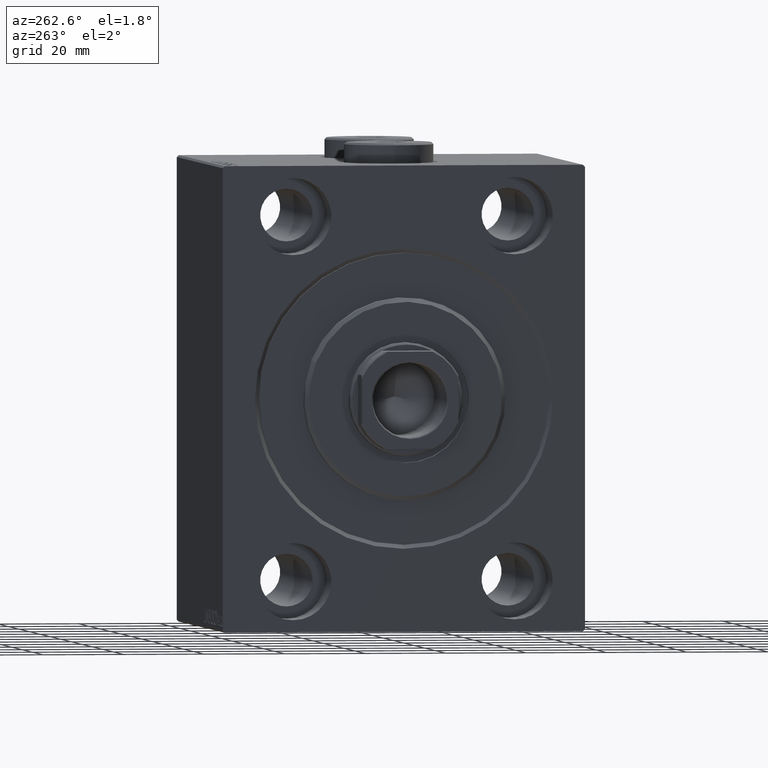
[diagram: clean part render]
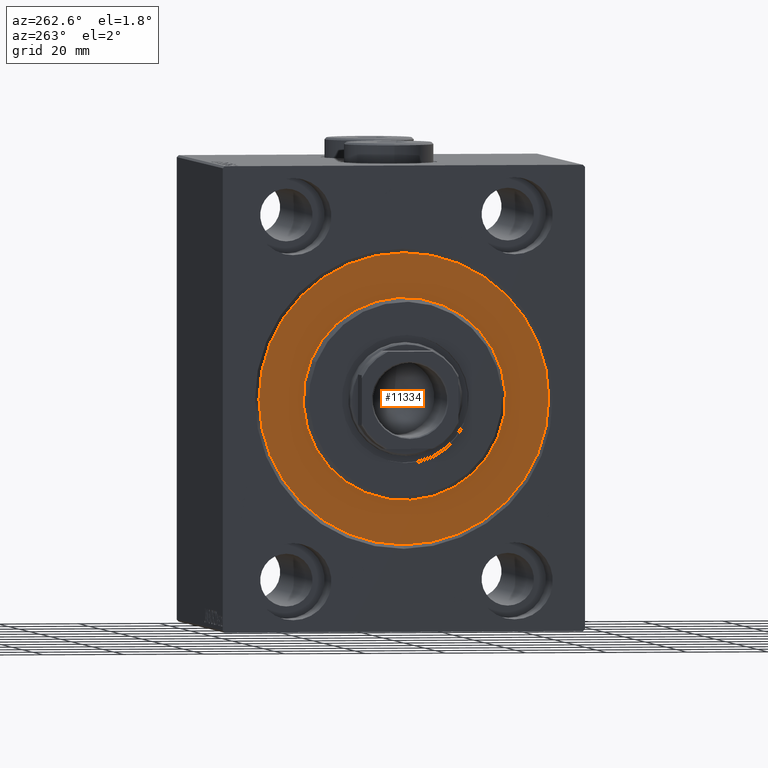
[diagram: same view with one face highlighted and labeled with its STEP entity id]
A machine part, auxiliary view. The second image highlights one B-rep face of the part: STEP entity #11334.
In plain terms, the highlighted planar face has unit normal (1, 0, -0).
Its self-contained STEP definition (entity closure, byte-faithful):
#1563 = EDGE_CURVE ( 'NONE', #32460, #44105, #32043, .T. ) ;
#2984 = DIRECTION ( 'NONE',  ( 0.000000000000000000, 0.000000000000000000, -1.000000000000000000 ) ) ;
#3145 = DIRECTION ( 'NONE',  ( -1.000000000000000000, 0.000000000000000000, 0.000000000000000000 ) ) ;
#3947 = CARTESIAN_POINT ( 'NONE',  ( 0.000000000000000000, 0.000000000000000000, 25.00000000000000000 ) ) ;
#4377 = AXIS2_PLACEMENT_3D ( 'NONE', #17575, #30605, #2984 ) ;
#4523 = VERTEX_POINT ( 'NONE', #26975 ) ;
#5589 = ORIENTED_EDGE ( 'NONE', *, *, #25036, .F. ) ;
#5767 = DIRECTION ( 'NONE',  ( 0.000000000000000000, 0.000000000000000000, -1.000000000000000000 ) ) ;
#6570 = PLANE ( 'NONE',  #24901 ) ;
#8157 = EDGE_CURVE ( 'NONE', #44105, #32460, #27850, .T. ) ;
#10907 = AXIS2_PLACEMENT_3D ( 'NONE', #16305, #43911, #36842 ) ;
#10962 = CIRCLE ( 'NONE', #4377, 25.00000000000000000 ) ;
#10980 = ORIENTED_EDGE ( 'NONE', *, *, #1563, .F. ) ;
#11334 = ADVANCED_FACE ( 'NONE', ( #13632, #41248 ), #6570, .F. ) ;
#13485 = CARTESIAN_POINT ( 'NONE',  ( 0.000000000000000000, 4.408728476930470856E-15, 36.00000000000000000 ) ) ;
#13632 = FACE_BOUND ( 'NONE', #18342, .T. ) ;
#14168 = ORIENTED_EDGE ( 'NONE', *, *, #8157, .F. ) ;
#16270 = CARTESIAN_POINT ( 'NONE',  ( 0.000000000000000000, 0.000000000000000000, 0.000000000000000000 ) ) ;
#16305 = CARTESIAN_POINT ( 'NONE',  ( 0.000000000000000000, 0.000000000000000000, 0.000000000000000000 ) ) ;
#16324 = ORIENTED_EDGE ( 'NONE', *, *, #29987, .F. ) ;
#16779 = DIRECTION ( 'NONE',  ( -1.000000000000000000, 0.000000000000000000, 0.000000000000000000 ) ) ;
#16992 = CARTESIAN_POINT ( 'NONE',  ( 0.000000000000000000, 0.000000000000000000, -36.00000000000000000 ) ) ;
#17552 = VERTEX_POINT ( 'NONE', #3947 ) ;
#17575 = CARTESIAN_POINT ( 'NONE',  ( 0.000000000000000000, 0.000000000000000000, 0.000000000000000000 ) ) ;
#18342 = EDGE_LOOP ( 'NONE', ( #5589, #16324 ) ) ;
#24901 = AXIS2_PLACEMENT_3D ( 'NONE', #34406, #3145, #31415 ) ;
#25036 = EDGE_CURVE ( 'NONE', #17552, #4523, #10962, .T. ) ;
#26975 = CARTESIAN_POINT ( 'NONE',  ( 0.000000000000000000, 3.061616997868383043E-15, -25.00000000000000000 ) ) ;
#27498 = DIRECTION ( 'NONE',  ( 0.000000000000000000, 0.000000000000000000, 1.000000000000000000 ) ) ;
#27850 = CIRCLE ( 'NONE', #39519, 36.00000000000000000 ) ;
#28443 = AXIS2_PLACEMENT_3D ( 'NONE', #16270, #43872, #5767 ) ;
#29987 = EDGE_CURVE ( 'NONE', #4523, #17552, #43771, .T. ) ;
#30605 = DIRECTION ( 'NONE',  ( 1.000000000000000000, -0.000000000000000000, 0.000000000000000000 ) ) ;
#31415 = DIRECTION ( 'NONE',  ( 0.000000000000000000, 0.000000000000000000, 1.000000000000000000 ) ) ;
#32043 = CIRCLE ( 'NONE', #10907, 36.00000000000000000 ) ;
#32460 = VERTEX_POINT ( 'NONE', #16992 ) ;
#33675 = CARTESIAN_POINT ( 'NONE',  ( 0.000000000000000000, 0.000000000000000000, 0.000000000000000000 ) ) ;
#34406 = CARTESIAN_POINT ( 'NONE',  ( 0.000000000000000000, 0.000000000000000000, 0.000000000000000000 ) ) ;
#36625 = EDGE_LOOP ( 'NONE', ( #10980, #14168 ) ) ;
#36842 = DIRECTION ( 'NONE',  ( 0.000000000000000000, 0.000000000000000000, 1.000000000000000000 ) ) ;
#39519 = AXIS2_PLACEMENT_3D ( 'NONE', #33675, #16779, #27498 ) ;
#41248 = FACE_OUTER_BOUND ( 'NONE', #36625, .T. ) ;
#43771 = CIRCLE ( 'NONE', #28443, 25.00000000000000000 ) ;
#43872 = DIRECTION ( 'NONE',  ( 1.000000000000000000, -0.000000000000000000, 0.000000000000000000 ) ) ;
#43911 = DIRECTION ( 'NONE',  ( -1.000000000000000000, 0.000000000000000000, 0.000000000000000000 ) ) ;
#44105 = VERTEX_POINT ( 'NONE', #13485 ) ;